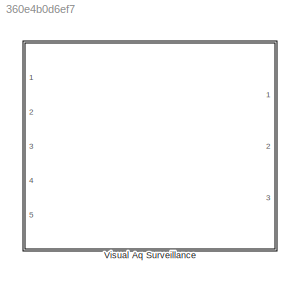
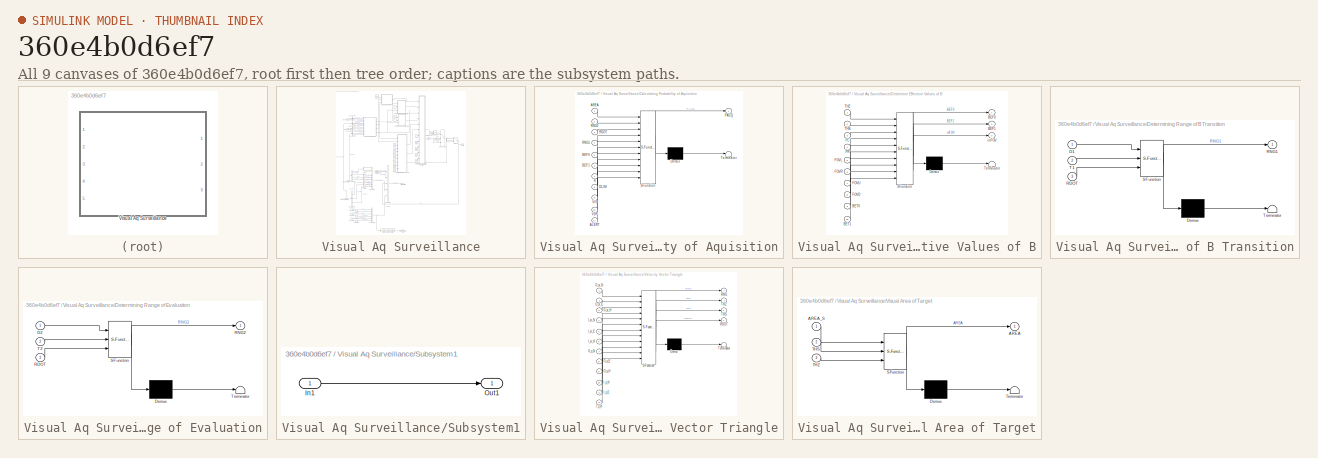
[diagram: thumbnail index - all 9 canvases of the model, root first then tree order]
MODEL slx_360e4b0d6ef7
KIND library
CONFIG AbsTol = auto
CONFIG EnableMultiTasking = off
CONFIG FixedStep = auto
CONFIG MaxStep = auto
CONFIG MinStep = auto
CONFIG RelTol = 1e-3
CONFIG SampleTimeConstraint = Unconstrained
CONFIG Solver = VariableStepAuto
CONFIG SolverName = VariableStepAuto
CONFIG StartTime = 0.0
CONFIG StopTime = 10.0
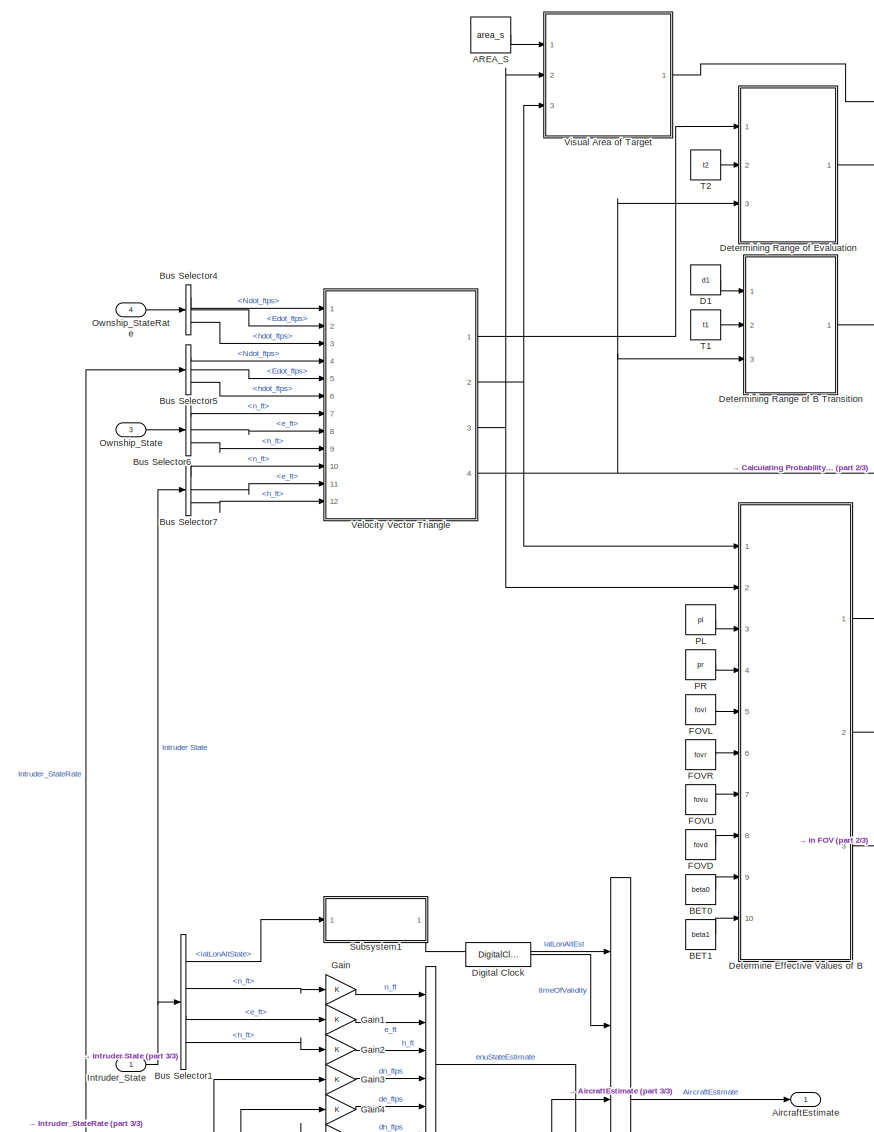
[diagram: Visual Aq Surveillance - part 1/3, middle left region]
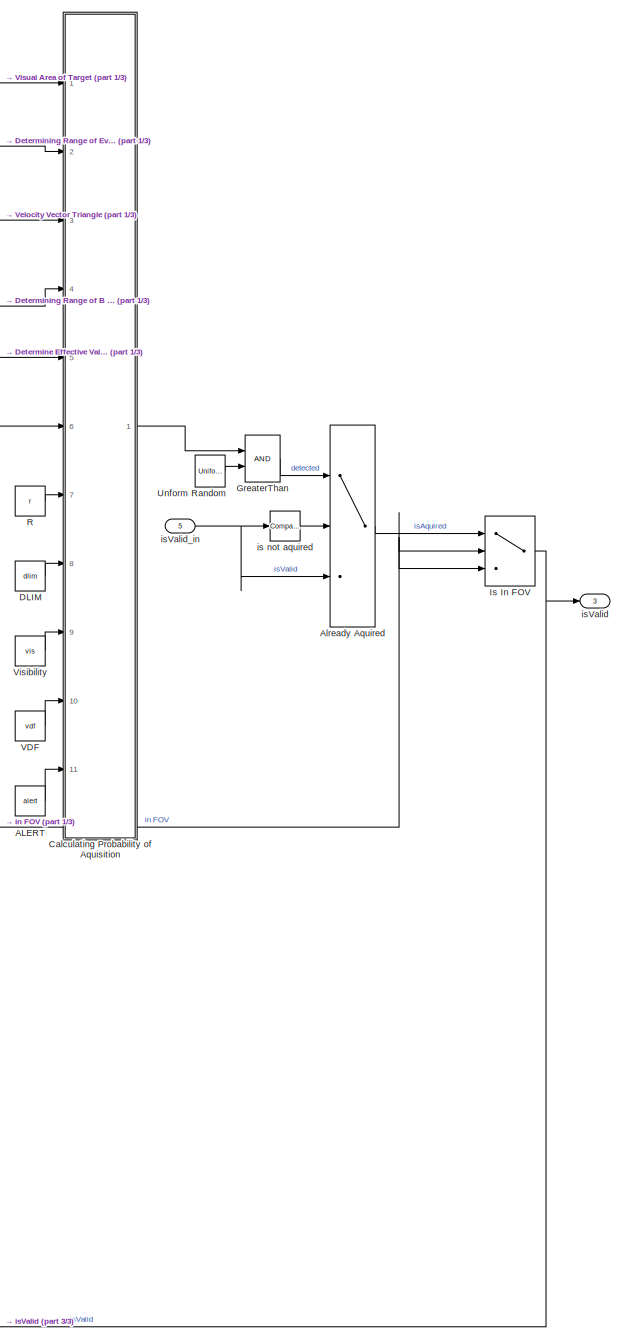
[diagram: Visual Aq Surveillance - part 2/3, right side, full height]
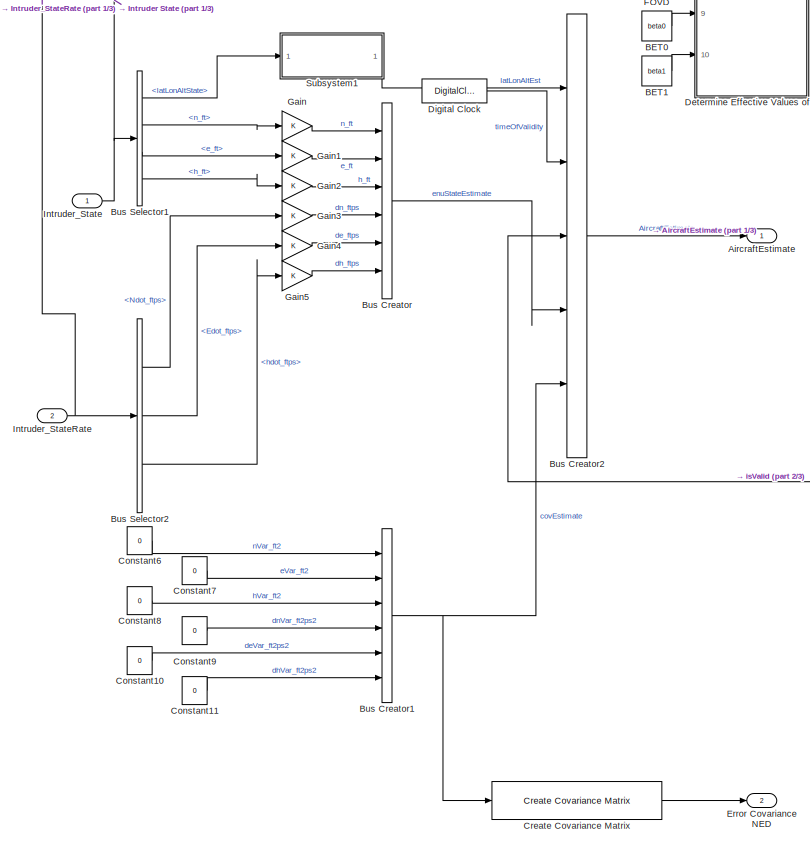
[diagram: Visual Aq Surveillance - part 3/3, bottom left region]
BLOCK [SubSystem] Visual Aq Surveillance
  Description = Documentation for Perfect Observation Block                                                                                                                                                                                                                                                                                                                                                                     ...<+6169ch>
  Ports = [5, 3]
  RequestExecContextInheritance = off
BLOCK [Constant] Visual Aq Surveillance/ALERT
  Value = alert
BLOCK [Constant] Visual Aq Surveillance/AREA_S 
  Value = area_s
  VectorParams1D = off
BLOCK [Outport] Visual Aq Surveillance/AircraftEstimate
  IconDisplay = Port number
  OutDataTypeStr = Bus: AircraftEstimate
  VectorParamsAs1DForOutWhenUnconnected = off
BLOCK [Switch] Visual Aq Surveillance/Already Aquired
  Criteria = u2 > Threshold
  InputSameDT = off
  SaturateOnIntegerOverflow = off
BLOCK [Constant] Visual Aq Surveillance/BET0
  Value = beta0
BLOCK [Constant] Visual Aq Surveillance/BET1
  Value = beta1
BLOCK [BusCreator] Visual Aq Surveillance/Bus Creator
  DisplayOption = bar
  InheritFromInputs = on
  Inputs = 6
  OutDataTypeStr = Bus: StateEstimate
  Ports = [6, 1]
BLOCK [BusCreator] Visual Aq Surveillance/Bus Creator1
  DisplayOption = bar
  InheritFromInputs = on
  Inputs = 6
  OutDataTypeStr = Bus: CovarianceEstimate
  Ports = [6, 1]
BLOCK [BusCreator] Visual Aq Surveillance/Bus Creator2
  DisplayOption = bar
  InheritFromInputs = on
  Inputs = 5
  NonVirtualBus = on
  OutDataTypeStr = Bus: AircraftEstimate
  Ports = [5, 1]
BLOCK [BusSelector] Visual Aq Surveillance/Bus Selector1
  OutputAsBus = off
  OutputSignals = latLonAltState,n_ft,e_ft,h_ft
  Ports = [1, 4]
BLOCK [BusSelector] Visual Aq Surveillance/Bus Selector2
  OutputAsBus = off
  OutputSignals = Ndot_ftps,Edot_ftps,hdot_ftps
  Ports = [1, 3]
BLOCK [BusSelector] Visual Aq Surveillance/Bus Selector4
  OutputAsBus = off
  OutputSignals = Ndot_ftps,Edot_ftps,hdot_ftps
  Ports = [1, 3]
BLOCK [BusSelector] Visual Aq Surveillance/Bus Selector5
  OutputAsBus = off
  OutputSignals = Ndot_ftps,Edot_ftps,hdot_ftps
  Ports = [1, 3]
BLOCK [BusSelector] Visual Aq Surveillance/Bus Selector6
  OutputAsBus = off
  OutputSignals = n_ft,e_ft,h_ft
  Ports = [1, 3]
BLOCK [BusSelector] Visual Aq Surveillance/Bus Selector7
  OutputAsBus = off
  OutputSignals = n_ft,e_ft,h_ft
  Ports = [1, 3]
BLOCK [SubSystem] Visual Aq Surveillance/Calculating Probability of Aquisition
  ErrorFcn = Stateflow.Translate.translate
  PermitHierarchicalResolution = ExplicitOnly
  Ports = [11, 1]
  RequestExecContextInheritance = off
  SFBlockType = MATLAB Function
  TreatAsAtomicUnit = on
BLOCK [Demux] Visual Aq Surveillance/Calculating Probability of Aquisition/ Demux 
  Outputs = 1
  Ports = [1, 1]
BLOCK [S-Function] Visual Aq Surveillance/Calculating Probability of Aquisition/ SFunction 
  EnableBusSupport = off
  FunctionName = sf_sfun
  PortCounts = [11 2]
  Ports = [11, 2]
  SFcnIsStateOwnerBlock = off
  SFunctionDeploymentMode = off
  Tag = Stateflow S-Function 7
BLOCK [Terminator] Visual Aq Surveillance/Calculating Probability of Aquisition/ Terminator 
BLOCK [Inport] Visual Aq Surveillance/Calculating Probability of Aquisition/ALERT
  IconDisplay = Port number
  Port = 11
BLOCK [Inport] Visual Aq Surveillance/Calculating Probability of Aquisition/AREA
  IconDisplay = Port number
BLOCK [Inport] Visual Aq Surveillance/Calculating Probability of Aquisition/BEF0
  IconDisplay = Port number
  Port = 5
BLOCK [Inport] Visual Aq Surveillance/Calculating Probability of Aquisition/BEF1
  IconDisplay = Port number
  Port = 6
BLOCK [Inport] Visual Aq Surveillance/Calculating Probability of Aquisition/DLIM
  IconDisplay = Port number
  Port = 8
BLOCK [Outport] Visual Aq Surveillance/Calculating Probability of Aquisition/PACQ
  IconDisplay = Port number
BLOCK [Inport] Visual Aq Surveillance/Calculating Probability of Aquisition/R
  IconDisplay = Port number
  Port = 7
BLOCK [Inport] Visual Aq Surveillance/Calculating Probability of Aquisition/RDOT
  IconDisplay = Port number
  Port = 3
BLOCK [Inport] Visual Aq Surveillance/Calculating Probability of Aquisition/RNG1
  IconDisplay = Port number
  Port = 4
BLOCK [Inport] Visual Aq Surveillance/Calculating Probability of Aquisition/RNG2
  IconDisplay = Port number
  Port = 2
BLOCK [Inport] Visual Aq Surveillance/Calculating Probability of Aquisition/VDF
  IconDisplay = Port number
  Port = 10
BLOCK [Inport] Visual Aq Surveillance/Calculating Probability of Aquisition/VIS
  IconDisplay = Port number
  Port = 9
BLOCK [Constant] Visual Aq Surveillance/Constant10
  Value = 0
BLOCK [Constant] Visual Aq Surveillance/Constant11
  Value = 0
BLOCK [Constant] Visual Aq Surveillance/Constant6
  Value = 0
BLOCK [Constant] Visual Aq Surveillance/Constant7
  Value = 0
BLOCK [Constant] Visual Aq Surveillance/Constant8
  Value = 0
BLOCK [Constant] Visual Aq Surveillance/Constant9
  Value = 0
BLOCK [Reference] Visual Aq Surveillance/Create Covariance Matrix  REF=CreateCovDiagMatrix/Create Covariance Matrix
  Ports = [1, 1]
  SourceBlock = CreateCovDiagMatrix/Create Covariance Matrix
  SourceType = SubSystem
BLOCK [Constant] Visual Aq Surveillance/D1
  Value = d1
BLOCK [Constant] Visual Aq Surveillance/DLIM
  Value = dlim
BLOCK [SubSystem] Visual Aq Surveillance/Determine Effective Values of B
  ErrorFcn = Stateflow.Translate.translate
  PermitHierarchicalResolution = ExplicitOnly
  Ports = [10, 3]
  RequestExecContextInheritance = off
  SFBlockType = MATLAB Function
  TreatAsAtomicUnit = on
BLOCK [Demux] Visual Aq Surveillance/Determine Effective Values of B/ Demux 
  Outputs = 1
  Ports = [1, 1]
BLOCK [S-Function] Visual Aq Surveillance/Determine Effective Values of B/ SFunction 
  EnableBusSupport = off
  FunctionName = sf_sfun
  PortCounts = [10 4]
  Ports = [10, 4]
  SFcnIsStateOwnerBlock = off
  SFunctionDeploymentMode = off
  Tag = Stateflow S-Function 6
BLOCK [Terminator] Visual Aq Surveillance/Determine Effective Values of B/ Terminator 
BLOCK [Outport] Visual Aq Surveillance/Determine Effective Values of B/BEF0
  IconDisplay = Port number
BLOCK [Outport] Visual Aq Surveillance/Determine Effective Values of B/BEF1
  IconDisplay = Port number
  Port = 2
BLOCK [Inport] Visual Aq Surveillance/Determine Effective Values of B/BET0
  IconDisplay = Port number
  Port = 9
BLOCK [Inport] Visual Aq Surveillance/Determine Effective Values of B/BET1
  IconDisplay = Port number
  Port = 10
BLOCK [Inport] Visual Aq Surveillance/Determine Effective Values of B/FOVD
  IconDisplay = Port number
  Port = 8
BLOCK [Inport] Visual Aq Surveillance/Determine Effective Values of B/FOVL
  IconDisplay = Port number
  Port = 5
BLOCK [Inport] Visual Aq Surveillance/Determine Effective Values of B/FOVR
  IconDisplay = Port number
  Port = 6
BLOCK [Inport] Visual Aq Surveillance/Determine Effective Values of B/FOVU
  IconDisplay = Port number
  Port = 7
BLOCK [Inport] Visual Aq Surveillance/Determine Effective Values of B/PL
  IconDisplay = Port number
  Port = 3
BLOCK [Inport] Visual Aq Surveillance/Determine Effective Values of B/PR
  IconDisplay = Port number
  Port = 4
BLOCK [Inport] Visual Aq Surveillance/Determine Effective Values of B/THS
  IconDisplay = Port number
  Port = 2
BLOCK [Inport] Visual Aq Surveillance/Determine Effective Values of B/THZ
  IconDisplay = Port number
BLOCK [Outport] Visual Aq Surveillance/Determine Effective Values of B/inFOV
  IconDisplay = Port number
  Port = 3
BLOCK [SubSystem] Visual Aq Surveillance/Determining Range of B Transition
  ErrorFcn = Stateflow.Translate.translate
  PermitHierarchicalResolution = ExplicitOnly
  Ports = [3, 1]
  RequestExecContextInheritance = off
  SFBlockType = MATLAB Function
  TreatAsAtomicUnit = on
BLOCK [Demux] Visual Aq Surveillance/Determining Range of B Transition/ Demux 
  Outputs = 1
  Ports = [1, 1]
BLOCK [S-Function] Visual Aq Surveillance/Determining Range of B Transition/ SFunction 
  EnableBusSupport = off
  FunctionName = sf_sfun
  PortCounts = [3 2]
  Ports = [3, 2]
  SFcnIsStateOwnerBlock = off
  SFunctionDeploymentMode = off
  Tag = Stateflow S-Function 4
BLOCK [Terminator] Visual Aq Surveillance/Determining Range of B Transition/ Terminator 
BLOCK [Inport] Visual Aq Surveillance/Determining Range of B Transition/D1
  IconDisplay = Port number
BLOCK [Inport] Visual Aq Surveillance/Determining Range of B Transition/RDOT
  IconDisplay = Port number
  Port = 3
BLOCK [Outport] Visual Aq Surveillance/Determining Range of B Transition/RNG1
  IconDisplay = Port number
BLOCK [Inport] Visual Aq Surveillance/Determining Range of B Transition/T1
  IconDisplay = Port number
  Port = 2
BLOCK [SubSystem] Visual Aq Surveillance/Determining Range of Evaluation
  ErrorFcn = Stateflow.Translate.translate
  PermitHierarchicalResolution = ExplicitOnly
  Ports = [3, 1]
  RequestExecContextInheritance = off
  SFBlockType = MATLAB Function
  TreatAsAtomicUnit = on
BLOCK [Demux] Visual Aq Surveillance/Determining Range of Evaluation/ Demux 
  Outputs = 1
  Ports = [1, 1]
BLOCK [S-Function] Visual Aq Surveillance/Determining Range of Evaluation/ SFunction 
  EnableBusSupport = off
  FunctionName = sf_sfun
  PortCounts = [3 2]
  Ports = [3, 2]
  SFcnIsStateOwnerBlock = off
  SFunctionDeploymentMode = off
  Tag = Stateflow S-Function 5
BLOCK [Terminator] Visual Aq Surveillance/Determining Range of Evaluation/ Terminator 
BLOCK [Inport] Visual Aq Surveillance/Determining Range of Evaluation/D2
  IconDisplay = Port number
BLOCK [Inport] Visual Aq Surveillance/Determining Range of Evaluation/RDOT
  IconDisplay = Port number
  Port = 3
BLOCK [Outport] Visual Aq Surveillance/Determining Range of Evaluation/RNG2
  IconDisplay = Port number
BLOCK [Inport] Visual Aq Surveillance/Determining Range of Evaluation/T2
  IconDisplay = Port number
  Port = 2
BLOCK [DigitalClock] Visual Aq Surveillance/Digital Clock
  SampleTime = dt
BLOCK [Outport] Visual Aq Surveillance/Error Covariance NED
  IconDisplay = Port number
  Port = 2
  VectorParamsAs1DForOutWhenUnconnected = off
BLOCK [Constant] Visual Aq Surveillance/FOVD
  Value = fovd
BLOCK [Constant] Visual Aq Surveillance/FOVL
  Value = fovl
BLOCK [Constant] Visual Aq Surveillance/FOVR
  Value = fovr
BLOCK [Constant] Visual Aq Surveillance/FOVU
  Value = fovu
BLOCK [Gain] Visual Aq Surveillance/Gain
  OutDataTypeStr = Inherit: Inherit via internal rule
  ParamDataTypeStr = Inherit: Inherit via internal rule
  SaturateOnIntegerOverflow = off
BLOCK [Gain] Visual Aq Surveillance/Gain1
  OutDataTypeStr = Inherit: Inherit via internal rule
  ParamDataTypeStr = Inherit: Inherit via internal rule
  SaturateOnIntegerOverflow = off
BLOCK [Gain] Visual Aq Surveillance/Gain2
  OutDataTypeStr = Inherit: Inherit via internal rule
  ParamDataTypeStr = Inherit: Inherit via internal rule
  SaturateOnIntegerOverflow = off
BLOCK [Gain] Visual Aq Surveillance/Gain3
  OutDataTypeStr = Inherit: Inherit via internal rule
  ParamDataTypeStr = Inherit: Inherit via internal rule
  SaturateOnIntegerOverflow = off
BLOCK [Gain] Visual Aq Surveillance/Gain4
  OutDataTypeStr = Inherit: Inherit via internal rule
  ParamDataTypeStr = Inherit: Inherit via internal rule
  SaturateOnIntegerOverflow = off
BLOCK [Gain] Visual Aq Surveillance/Gain5
  OutDataTypeStr = Inherit: Inherit via internal rule
  ParamDataTypeStr = Inherit: Inherit via internal rule
  SaturateOnIntegerOverflow = off
BLOCK [RelationalOperator] Visual Aq Surveillance/GreaterThan
  InputSameDT = off
  OutDataTypeStr = boolean
  Ports = [2, 1]
  RndMeth = Simplest
BLOCK [Inport] Visual Aq Surveillance/Intruder_State
  IconDisplay = Port number
  OutDataTypeStr = Bus: AircraftState
BLOCK [Inport] Visual Aq Surveillance/Intruder_StateRate
  IconDisplay = Port number
  OutDataTypeStr = Bus: AircraftStateRate
  Port = 2
BLOCK [Switch] Visual Aq Surveillance/Is In FOV
  Criteria = u2 > Threshold
  InputSameDT = off
  SaturateOnIntegerOverflow = off
BLOCK [Inport] Visual Aq Surveillance/Ownship_State
  IconDisplay = Port number
  OutDataTypeStr = Bus: AircraftState
  Port = 3
BLOCK [Inport] Visual Aq Surveillance/Ownship_StateRate
  IconDisplay = Port number
  OutDataTypeStr = Bus: AircraftStateRate
  Port = 4
BLOCK [Constant] Visual Aq Surveillance/PL
  Value = pl
BLOCK [Constant] Visual Aq Surveillance/PR
  Value = pr
BLOCK [Constant] Visual Aq Surveillance/R
  Value = r
BLOCK [SubSystem] Visual Aq Surveillance/Subsystem1
  Ports = [1, 1]
  RequestExecContextInheritance = off
BLOCK [Inport] Visual Aq Surveillance/Subsystem1/In1
  IconDisplay = Port number
BLOCK [Outport] Visual Aq Surveillance/Subsystem1/Out1
  IconDisplay = Port number
  VectorParamsAs1DForOutWhenUnconnected = off
BLOCK [Constant] Visual Aq Surveillance/T1
  Value = t1
BLOCK [Constant] Visual Aq Surveillance/T2
  Value = t2
BLOCK [UniformRandomNumber] Visual Aq Surveillance/Unform Random
  Minimum = 0
  SampleTime = 0.1
  Seed = rseed
BLOCK [Constant] Visual Aq Surveillance/VDF
  Value = vdf
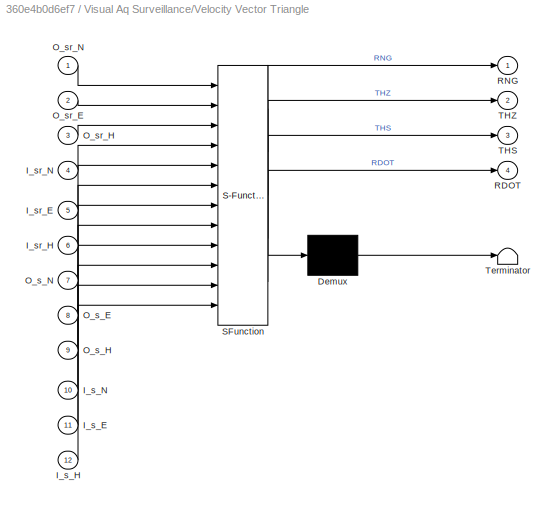
BLOCK [SubSystem] Visual Aq Surveillance/Velocity Vector Triangle
  ErrorFcn = Stateflow.Translate.translate
  PermitHierarchicalResolution = ExplicitOnly
  Ports = [12, 4]
  RequestExecContextInheritance = off
  SFBlockType = MATLAB Function
  TreatAsAtomicUnit = on
BLOCK [Demux] Visual Aq Surveillance/Velocity Vector Triangle/ Demux 
  Outputs = 1
  Ports = [1, 1]
BLOCK [S-Function] Visual Aq Surveillance/Velocity Vector Triangle/ SFunction 
  EnableBusSupport = off
  FunctionName = sf_sfun
  PortCounts = [12 5]
  Ports = [12, 5]
  SFcnIsStateOwnerBlock = off
  SFunctionDeploymentMode = off
  Tag = Stateflow S-Function 1
BLOCK [Terminator] Visual Aq Surveillance/Velocity Vector Triangle/ Terminator 
BLOCK [Inport] Visual Aq Surveillance/Velocity Vector Triangle/I_s_E
  IconDisplay = Port number
  Port = 11
BLOCK [Inport] Visual Aq Surveillance/Velocity Vector Triangle/I_s_H
  IconDisplay = Port number
  Port = 12
BLOCK [Inport] Visual Aq Surveillance/Velocity Vector Triangle/I_s_N
  IconDisplay = Port number
  Port = 10
BLOCK [Inport] Visual Aq Surveillance/Velocity Vector Triangle/I_sr_E
  IconDisplay = Port number
  Port = 5
BLOCK [Inport] Visual Aq Surveillance/Velocity Vector Triangle/I_sr_H
  IconDisplay = Port number
  Port = 6
BLOCK [Inport] Visual Aq Surveillance/Velocity Vector Triangle/I_sr_N
  IconDisplay = Port number
  Port = 4
BLOCK [Inport] Visual Aq Surveillance/Velocity Vector Triangle/O_s_E
  IconDisplay = Port number
  Port = 8
BLOCK [Inport] Visual Aq Surveillance/Velocity Vector Triangle/O_s_H
  IconDisplay = Port number
  Port = 9
BLOCK [Inport] Visual Aq Surveillance/Velocity Vector Triangle/O_s_N
  IconDisplay = Port number
  Port = 7
BLOCK [Inport] Visual Aq Surveillance/Velocity Vector Triangle/O_sr_E
  IconDisplay = Port number
  Port = 2
BLOCK [Inport] Visual Aq Surveillance/Velocity Vector Triangle/O_sr_H
  IconDisplay = Port number
  Port = 3
BLOCK [Inport] Visual Aq Surveillance/Velocity Vector Triangle/O_sr_N
  IconDisplay = Port number
BLOCK [Outport] Visual Aq Surveillance/Velocity Vector Triangle/RDOT
  IconDisplay = Port number
  Port = 4
BLOCK [Outport] Visual Aq Surveillance/Velocity Vector Triangle/RNG
  IconDisplay = Port number
BLOCK [Outport] Visual Aq Surveillance/Velocity Vector Triangle/THS
  IconDisplay = Port number
  Port = 3
BLOCK [Outport] Visual Aq Surveillance/Velocity Vector Triangle/THZ
  IconDisplay = Port number
  Port = 2
BLOCK [Constant] Visual Aq Surveillance/Visibility
  Value = vis
BLOCK [SubSystem] Visual Aq Surveillance/Visual Area of Target
  ErrorFcn = Stateflow.Translate.translate
  PermitHierarchicalResolution = ExplicitOnly
  Ports = [3, 1]
  RequestExecContextInheritance = off
  SFBlockType = MATLAB Function
  TreatAsAtomicUnit = on
BLOCK [Demux] Visual Aq Surveillance/Visual Area of Target/ Demux 
  Outputs = 1
  Ports = [1, 1]
BLOCK [S-Function] Visual Aq Surveillance/Visual Area of Target/ SFunction 
  EnableBusSupport = off
  FunctionName = sf_sfun
  PortCounts = [3 2]
  Ports = [3, 2]
  SFcnIsStateOwnerBlock = off
  SFunctionDeploymentMode = off
  Tag = Stateflow S-Function 3
BLOCK [Terminator] Visual Aq Surveillance/Visual Area of Target/ Terminator 
BLOCK [Outport] Visual Aq Surveillance/Visual Area of Target/AREA
  IconDisplay = Port number
BLOCK [Inport] Visual Aq Surveillance/Visual Area of Target/AREA_S
  IconDisplay = Port number
BLOCK [Inport] Visual Aq Surveillance/Visual Area of Target/THS
  IconDisplay = Port number
  Port = 2
BLOCK [Inport] Visual Aq Surveillance/Visual Area of Target/THZ
  IconDisplay = Port number
  Port = 3
BLOCK [Reference] Visual Aq Surveillance/is not aquired  REF=simulink/Logic and Bit
Operations/Compare
To Zero
  Ports = [1, 1]
  SourceBlock = simulink/Logic and Bit\nOperations/Compare\nTo Zero
  SourceProductBaseCode = SL
  SourceProductName = Simulink
  SourceType = Compare To Zero
BLOCK [Outport] Visual Aq Surveillance/isValid 
  IconDisplay = Port number
  Port = 3
BLOCK [Inport] Visual Aq Surveillance/isValid_in
  IconDisplay = Port number
  Port = 5
LINE Visual Aq Surveillance/ALERT:1 -> Visual Aq Surveillance/Calculating Probability of Aquisition:11
LINE Visual Aq Surveillance/AREA_S :1 -> Visual Aq Surveillance/Visual Area of Target:1
LINE Visual Aq Surveillance/Already Aquired:1 -> Visual Aq Surveillance/Is In FOV:1
LINE Visual Aq Surveillance/BET0:1 -> Visual Aq Surveillance/Determine Effective Values of B:9
LINE Visual Aq Surveillance/BET1:1 -> Visual Aq Surveillance/Determine Effective Values of B:10
NET Visual Aq Surveillance/Bus Creator1:1 -> Visual Aq Surveillance/Bus Creator2:5, Visual Aq Surveillance/Create Covariance Matrix:1
LINE Visual Aq Surveillance/Bus Creator2:1 -> Visual Aq Surveillance/AircraftEstimate:1
LINE Visual Aq Surveillance/Bus Creator:1 -> Visual Aq Surveillance/Bus Creator2:4
LINE Visual Aq Surveillance/Bus Selector1:1 -> Visual Aq Surveillance/Subsystem1:1
LINE Visual Aq Surveillance/Bus Selector1:2 -> Visual Aq Surveillance/Gain:1
LINE Visual Aq Surveillance/Bus Selector1:3 -> Visual Aq Surveillance/Gain1:1
LINE Visual Aq Surveillance/Bus Selector1:4 -> Visual Aq Surveillance/Gain2:1
LINE Visual Aq Surveillance/Bus Selector2:1 -> Visual Aq Surveillance/Gain3:1
LINE Visual Aq Surveillance/Bus Selector2:2 -> Visual Aq Surveillance/Gain4:1
LINE Visual Aq Surveillance/Bus Selector2:3 -> Visual Aq Surveillance/Gain5:1
LINE Visual Aq Surveillance/Bus Selector4:1 -> Visual Aq Surveillance/Velocity Vector Triangle:1
LINE Visual Aq Surveillance/Bus Selector4:2 -> Visual Aq Surveillance/Velocity Vector Triangle:2
LINE Visual Aq Surveillance/Bus Selector4:3 -> Visual Aq Surveillance/Velocity Vector Triangle:3
LINE Visual Aq Surveillance/Bus Selector5:1 -> Visual Aq Surveillance/Velocity Vector Triangle:4
LINE Visual Aq Surveillance/Bus Selector5:2 -> Visual Aq Surveillance/Velocity Vector Triangle:5
LINE Visual Aq Surveillance/Bus Selector5:3 -> Visual Aq Surveillance/Velocity Vector Triangle:6
LINE Visual Aq Surveillance/Bus Selector6:1 -> Visual Aq Surveillance/Velocity Vector Triangle:7
LINE Visual Aq Surveillance/Bus Selector6:2 -> Visual Aq Surveillance/Velocity Vector Triangle:8
LINE Visual Aq Surveillance/Bus Selector6:3 -> Visual Aq Surveillance/Velocity Vector Triangle:9
LINE Visual Aq Surveillance/Bus Selector7:1 -> Visual Aq Surveillance/Velocity Vector Triangle:10
LINE Visual Aq Surveillance/Bus Selector7:2 -> Visual Aq Surveillance/Velocity Vector Triangle:11
LINE Visual Aq Surveillance/Bus Selector7:3 -> Visual Aq Surveillance/Velocity Vector Triangle:12
LINE Visual Aq Surveillance/Calculating Probability of Aquisition:1 -> Visual Aq Surveillance/GreaterThan:1
LINE Visual Aq Surveillance/Constant10:1 -> Visual Aq Surveillance/Bus Creator1:5
LINE Visual Aq Surveillance/Constant11:1 -> Visual Aq Surveillance/Bus Creator1:6
LINE Visual Aq Surveillance/Constant6:1 -> Visual Aq Surveillance/Bus Creator1:1
LINE Visual Aq Surveillance/Constant7:1 -> Visual Aq Surveillance/Bus Creator1:2
LINE Visual Aq Surveillance/Constant8:1 -> Visual Aq Surveillance/Bus Creator1:3
LINE Visual Aq Surveillance/Constant9:1 -> Visual Aq Surveillance/Bus Creator1:4
LINE Visual Aq Surveillance/Create Covariance Matrix:1 -> Visual Aq Surveillance/Error Covariance NED:1
LINE Visual Aq Surveillance/D1:1 -> Visual Aq Surveillance/Determining Range of B Transition:1
LINE Visual Aq Surveillance/DLIM:1 -> Visual Aq Surveillance/Calculating Probability of Aquisition:8
LINE Visual Aq Surveillance/Determine Effective Values of B:1 -> Visual Aq Surveillance/Calculating Probability of Aquisition:5
LINE Visual Aq Surveillance/Determine Effective Values of B:2 -> Visual Aq Surveillance/Calculating Probability of Aquisition:6
NET Visual Aq Surveillance/Determine Effective Values of B:3 -> Visual Aq Surveillance/Is In FOV:2, Visual Aq Surveillance/Is In FOV:3
LINE Visual Aq Surveillance/Determining Range of B Transition:1 -> Visual Aq Surveillance/Calculating Probability of Aquisition:4
LINE Visual Aq Surveillance/Determining Range of Evaluation:1 -> Visual Aq Surveillance/Calculating Probability of Aquisition:2
LINE Visual Aq Surveillance/Digital Clock:1 -> Visual Aq Surveillance/Bus Creator2:2
LINE Visual Aq Surveillance/FOVD:1 -> Visual Aq Surveillance/Determine Effective Values of B:8
LINE Visual Aq Surveillance/FOVL:1 -> Visual Aq Surveillance/Determine Effective Values of B:5
LINE Visual Aq Surveillance/FOVR:1 -> Visual Aq Surveillance/Determine Effective Values of B:6
LINE Visual Aq Surveillance/FOVU:1 -> Visual Aq Surveillance/Determine Effective Values of B:7
LINE Visual Aq Surveillance/Gain1:1 -> Visual Aq Surveillance/Bus Creator:2
LINE Visual Aq Surveillance/Gain2:1 -> Visual Aq Surveillance/Bus Creator:3
LINE Visual Aq Surveillance/Gain3:1 -> Visual Aq Surveillance/Bus Creator:4
LINE Visual Aq Surveillance/Gain4:1 -> Visual Aq Surveillance/Bus Creator:5
LINE Visual Aq Surveillance/Gain5:1 -> Visual Aq Surveillance/Bus Creator:6
LINE Visual Aq Surveillance/Gain:1 -> Visual Aq Surveillance/Bus Creator:1
LINE Visual Aq Surveillance/GreaterThan:1 -> Visual Aq Surveillance/Already Aquired:1
NET Visual Aq Surveillance/Intruder_State:1 -> Visual Aq Surveillance/Bus Selector1:1, Visual Aq Surveillance/Bus Selector7:1
NET Visual Aq Surveillance/Intruder_StateRate:1 -> Visual Aq Surveillance/Bus Selector2:1, Visual Aq Surveillance/Bus Selector5:1
NET Visual Aq Surveillance/Is In FOV:1 -> Visual Aq Surveillance/Bus Creator2:3, Visual Aq Surveillance/isValid :1
LINE Visual Aq Surveillance/Ownship_State:1 -> Visual Aq Surveillance/Bus Selector6:1
LINE Visual Aq Surveillance/Ownship_StateRate:1 -> Visual Aq Surveillance/Bus Selector4:1
LINE Visual Aq Surveillance/PL:1 -> Visual Aq Surveillance/Determine Effective Values of B:3
LINE Visual Aq Surveillance/PR:1 -> Visual Aq Surveillance/Determine Effective Values of B:4
LINE Visual Aq Surveillance/R:1 -> Visual Aq Surveillance/Calculating Probability of Aquisition:7
LINE Visual Aq Surveillance/Subsystem1/In1:1 -> Visual Aq Surveillance/Subsystem1/Out1:1
LINE Visual Aq Surveillance/Subsystem1:1 -> Visual Aq Surveillance/Bus Creator2:1
LINE Visual Aq Surveillance/T1:1 -> Visual Aq Surveillance/Determining Range of B Transition:2
LINE Visual Aq Surveillance/T2:1 -> Visual Aq Surveillance/Determining Range of Evaluation:2
LINE Visual Aq Surveillance/Unform Random:1 -> Visual Aq Surveillance/GreaterThan:2
LINE Visual Aq Surveillance/VDF:1 -> Visual Aq Surveillance/Calculating Probability of Aquisition:10
LINE Visual Aq Surveillance/Velocity Vector Triangle:1 -> Visual Aq Surveillance/Determining Range of Evaluation:1
NET Visual Aq Surveillance/Velocity Vector Triangle:2 -> Visual Aq Surveillance/Determine Effective Values of B:1, Visual Aq Surveillance/Visual Area of Target:3
NET Visual Aq Surveillance/Velocity Vector Triangle:3 -> Visual Aq Surveillance/Determine Effective Values of B:2, Visual Aq Surveillance/Visual Area of Target:2
NET Visual Aq Surveillance/Velocity Vector Triangle:4 -> Visual Aq Surveillance/Calculating Probability of Aquisition:3, Visual Aq Surveillance/Determining Range of B Transition:3, Visual Aq Surveillance/Determining Range of Evaluation:3
LINE Visual Aq Surveillance/Visibility:1 -> Visual Aq Surveillance/Calculating Probability of Aquisition:9
LINE Visual Aq Surveillance/Visual Area of Target:1 -> Visual Aq Surveillance/Calculating Probability of Aquisition:1
LINE Visual Aq Surveillance/is not aquired:1 -> Visual Aq Surveillance/Already Aquired:2
NET Visual Aq Surveillance/isValid_in:1 -> Visual Aq Surveillance/Already Aquired:3, Visual Aq Surveillance/is not aquired:1
note: NET lines group one-source signal fan-out (src -> all destinations, sorted); 1:1 wires keep LINE
CHART Visual Aq Surveillance/Velocity Vector Triangle states=1 transitions=1
  STATE_LABEL 'eML_blk_kernel()'
  STATE_LABEL 'SCRIPT:\nfunction [RNG, THZ, THS, RDOT] = JAndrews_Mod_2(O_sr_N,O_sr_E,O_sr_H,I_sr_N,I_sr_E,I_sr_H,O_s_N,O_s_E,O_s_H,I_s_N,I_s_E,I_s_H)\n% Input variable defintions\n% No, symbol, name, value, definition\n% 1.  - , BET0, 17000 per steradian-sec,  single pilot B values before transition\n% 2.  - , BET1, 17000 per steradian-sec,  Single-pilot B value after transition\n% 3.  t1, T1,   180 sec,             ...<+3608ch>'
CHART Visual Aq Surveillance/Visual Area of Target states=1 transitions=1
  STATE_LABEL 'eML_blk_kernel()'
  STATE_LABEL 'SCRIPT:\nfunction AREA = JAndrews_Mod_3(AREA_S, THS, THZ)\n% Input variable defintions\n% No, symbol, name, value, definition\n% 18. Ax, AX,   35 sq.ft.*,               Head-on visual area of target.\n% 19. Ay, AY,   85 sq.ft.*,               Broadside visual area of target.\n% 20. Az, AZ,   260 sq.ft.*,              Topside visual area of target.\n% 21. A,  AREA, 35 sq.ft.*,               Final visual a...<+2454ch>'
CHART Visual Aq Surveillance/Determining Range of B Transition states=1 transitions=1
  STATE_LABEL 'eML_blk_kernel()'
  STATE_LABEL 'SCRIPT:\nfunction RNG1 = JAndrews_Mod_6(D1,T1,RDOT)\n% Input variable defintions\n% No, symbol, name, value, definition\n% 3.  t1, T1,   180 sec,                  modified tau time for B transition (time to closest approach)\n% 5.  D1, D1,   0. nmi,                   modified tau range parameter for B transition.\n% 17. r., RDOT, 380 kt*,                  Range rate of target aircraft\n% 24. R1, RNG1, 3....<+1293ch>'
CHART Visual Aq Surveillance/Determining Range of Evaluation states=1 transitions=1
  STATE_LABEL 'eML_blk_kernel()'
  STATE_LABEL 'SCRIPT:\nfunction RNG2 = JAndrews_Mod_5(D2, T2, RDOT)\n% Input variable defintions\n% No, symbol, name, value, definition\n% 4.  t2, T2,   12 sec,                   modified tau time for evaluation of PACQ (time to closest approach)\n% 6.  D2, D2,   0. nmi,                   modified tau range parameter for PACQ evaluation\n% 17. r., RDOT, 380 kt*,                  Range rate of target aircraft\n% 25. R2...<+1289ch>'
CHART Visual Aq Surveillance/Determine Effective Values of B states=1 transitions=1
  STATE_LABEL 'eML_blk_kernel()'
  STATE_LABEL 'SCRIPT:\nfunction [BEF0, BEF1,inFOV] = JAndrews_Mod_4(THZ, THS, PL, PR, FOVL, FOVR, FOVU, FOVD, BET0, BET1)\n% Input variable defintions\n% No, symbol, name, value, definition\n% 1.  - , BET0, 17000 per steradian-sec,  single pilot B values before transition\n% 2.  - , BET1, 17000 per steradian-sec,  Single-pilot B value after transition\n% 13. PL, PL,   1.0,                      Search intensity for pi...<+3608ch>'
CHART Visual Aq Surveillance/Calculating Probability of Aquisition states=1 transitions=1
  STATE_LABEL 'eML_blk_kernel()'
  STATE_LABEL 'SCRIPT:\nfunction PACQ = JAndrews_Mod_7(AREA, RNG2, RDOT, RNG1, BEF0, BEF1, R, DLIM, VIS, VDF,ALERT)\n% Input variable defintions\n% No, symbol, name, value, definition\n% 7.  R,  R,    20. nmi,                  visual range\n% 8.  d,  DLIM, 1 arc-min,                Resolution limit of human eye.\n% 17. r., RDOT, 380 kt*,                  Range rate of target aircraft\n% 21. A,  AREA, 35 sq.ft.*,       ...<+2406ch>'
